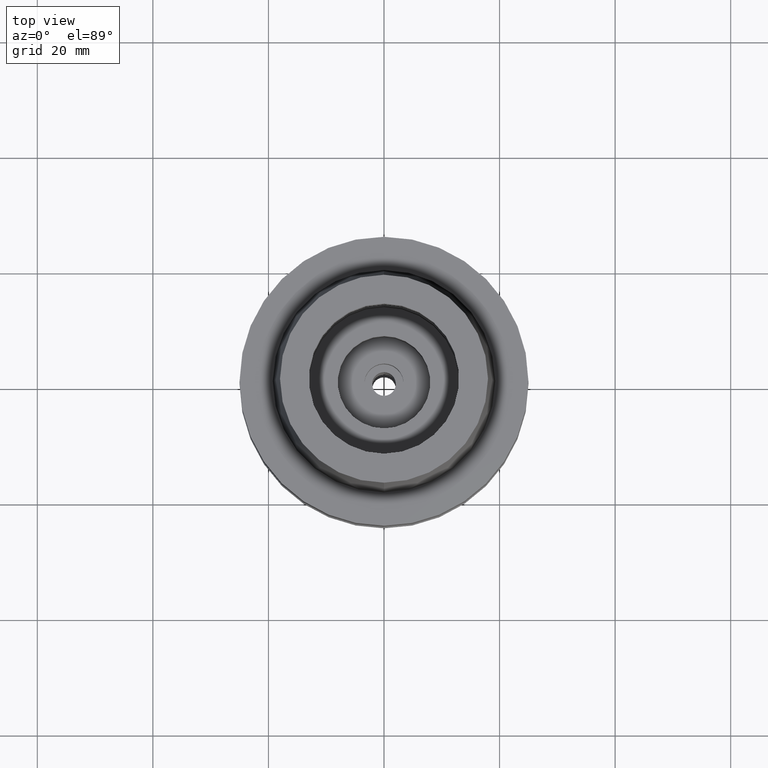
[diagram: clean part render]
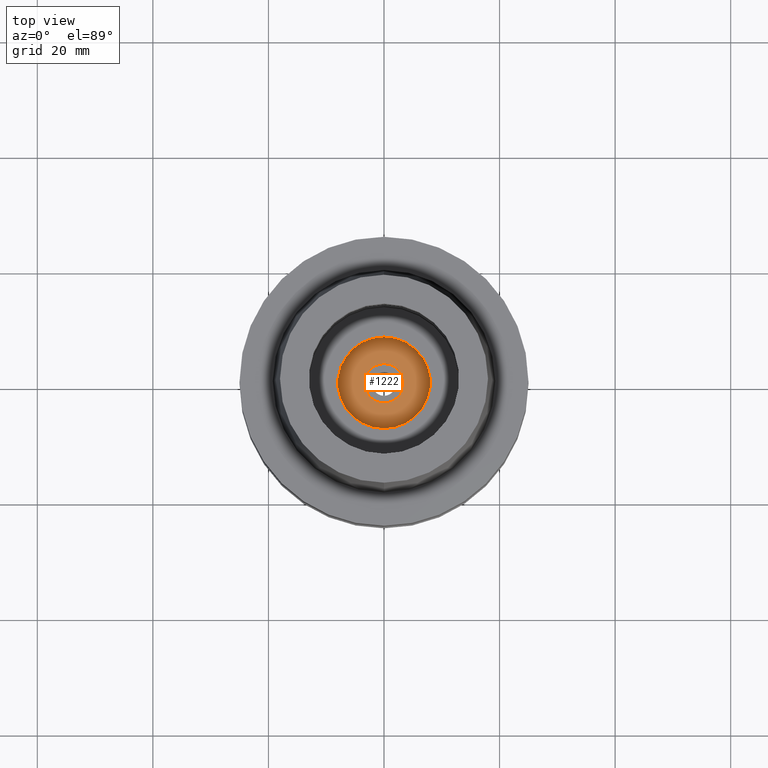
[diagram: same view with one face highlighted and labeled with its STEP entity id]
A machine part, top view. The second image highlights one B-rep face of the part: STEP entity #1222.
In plain terms, the highlighted planar face has unit normal (0, 0, 1).
Its self-contained STEP definition (entity closure, byte-faithful):
#32 = VERTEX_POINT ( 'NONE', #175 ) ;
#103 = EDGE_CURVE ( 'NONE', #640, #32, #2238, .T. ) ;
#108 = EDGE_LOOP ( 'NONE', ( #1525, #1087 ) ) ;
#150 = CARTESIAN_POINT ( 'NONE',  ( 0.0000000000000000000, 0.0000000000000000000, -19.94999999999999929 ) ) ;
#175 = CARTESIAN_POINT ( 'NONE',  ( 0.0000000000000000000, -8.000000000000000000, -19.94999999999999929 ) ) ;
#278 = ORIENTED_EDGE ( 'NONE', *, *, #1983, .F. ) ;
#279 = DIRECTION ( 'NONE',  ( 0.0000000000000000000, 0.0000000000000000000, -1.000000000000000000 ) ) ;
#337 = CARTESIAN_POINT ( 'NONE',  ( 0.0000000000000000000, 0.0000000000000000000, -19.94999999999999929 ) ) ;
#356 = CIRCLE ( 'NONE', #2330, 3.399999999999999911 ) ;
#357 = FACE_OUTER_BOUND ( 'NONE', #108, .T. ) ;
#427 = CARTESIAN_POINT ( 'NONE',  ( 0.0000000000000000000, 0.0000000000000000000, -19.94999999999999929 ) ) ;
#431 = CARTESIAN_POINT ( 'NONE',  ( 0.0000000000000000000, 8.000000000000000000, -19.94999999999999929 ) ) ;
#444 = CARTESIAN_POINT ( 'NONE',  ( 0.0000000000000000000, 0.0000000000000000000, -19.94999999999999929 ) ) ;
#460 = ORIENTED_EDGE ( 'NONE', *, *, #1041, .F. ) ;
#527 = AXIS2_PLACEMENT_3D ( 'NONE', #444, #279, #1917 ) ;
#587 = PLANE ( 'NONE',  #2186 ) ;
#630 = VERTEX_POINT ( 'NONE', #2661 ) ;
#640 = VERTEX_POINT ( 'NONE', #431 ) ;
#702 = CARTESIAN_POINT ( 'NONE',  ( 0.0000000000000000000, 0.0000000000000000000, -19.94999999999999929 ) ) ;
#717 = DIRECTION ( 'NONE',  ( 0.0000000000000000000, 0.0000000000000000000, 1.000000000000000000 ) ) ;
#791 = DIRECTION ( 'NONE',  ( 0.0000000000000000000, 1.000000000000000000, 0.0000000000000000000 ) ) ;
#847 = DIRECTION ( 'NONE',  ( 0.0000000000000000000, 1.000000000000000000, 0.0000000000000000000 ) ) ;
#1041 = EDGE_CURVE ( 'NONE', #2660, #630, #1972, .T. ) ;
#1087 = ORIENTED_EDGE ( 'NONE', *, *, #2419, .F. ) ;
#1222 = ADVANCED_FACE ( 'NONE', ( #357, #2030 ), #587, .T. ) ;
#1256 = DIRECTION ( 'NONE',  ( 0.0000000000000000000, 0.0000000000000000000, 1.000000000000000000 ) ) ;
#1525 = ORIENTED_EDGE ( 'NONE', *, *, #103, .F. ) ;
#1552 = DIRECTION ( 'NONE',  ( 0.0000000000000000000, -1.000000000000000000, 0.0000000000000000000 ) ) ;
#1715 = CIRCLE ( 'NONE', #527, 8.000000000000000000 ) ;
#1823 = DIRECTION ( 'NONE',  ( 0.0000000000000000000, 0.0000000000000000000, 1.000000000000000000 ) ) ;
#1917 = DIRECTION ( 'NONE',  ( 0.0000000000000000000, -1.000000000000000000, 0.0000000000000000000 ) ) ;
#1972 = CIRCLE ( 'NONE', #2062, 3.399999999999999911 ) ;
#1983 = EDGE_CURVE ( 'NONE', #630, #2660, #356, .T. ) ;
#1989 = AXIS2_PLACEMENT_3D ( 'NONE', #337, #2449, #791 ) ;
#2030 = FACE_BOUND ( 'NONE', #2306, .T. ) ;
#2062 = AXIS2_PLACEMENT_3D ( 'NONE', #427, #1256, #847 ) ;
#2186 = AXIS2_PLACEMENT_3D ( 'NONE', #150, #1823, #2647 ) ;
#2238 = CIRCLE ( 'NONE', #1989, 8.000000000000000000 ) ;
#2306 = EDGE_LOOP ( 'NONE', ( #460, #278 ) ) ;
#2330 = AXIS2_PLACEMENT_3D ( 'NONE', #702, #717, #1552 ) ;
#2419 = EDGE_CURVE ( 'NONE', #32, #640, #1715, .T. ) ;
#2449 = DIRECTION ( 'NONE',  ( 0.0000000000000000000, 0.0000000000000000000, -1.000000000000000000 ) ) ;
#2475 = CARTESIAN_POINT ( 'NONE',  ( 0.0000000000000000000, 3.399999999999999911, -19.94999999999999929 ) ) ;
#2647 = DIRECTION ( 'NONE',  ( 1.000000000000000000, 0.0000000000000000000, 0.0000000000000000000 ) ) ;
#2660 = VERTEX_POINT ( 'NONE', #2475 ) ;
#2661 = CARTESIAN_POINT ( 'NONE',  ( 0.0000000000000000000, -3.399999999999999911, -19.94999999999999929 ) ) ;